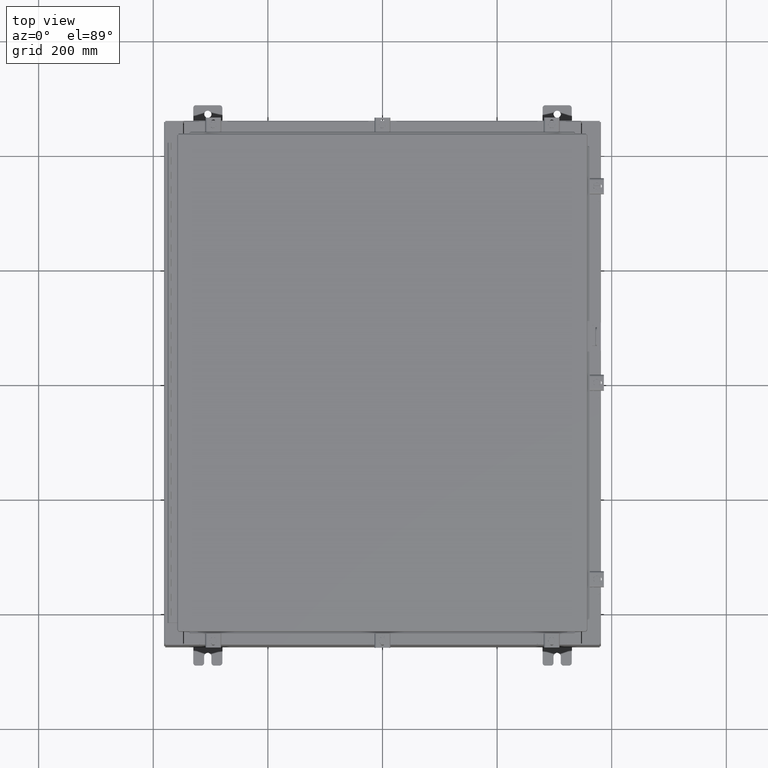
[diagram: clean part render]
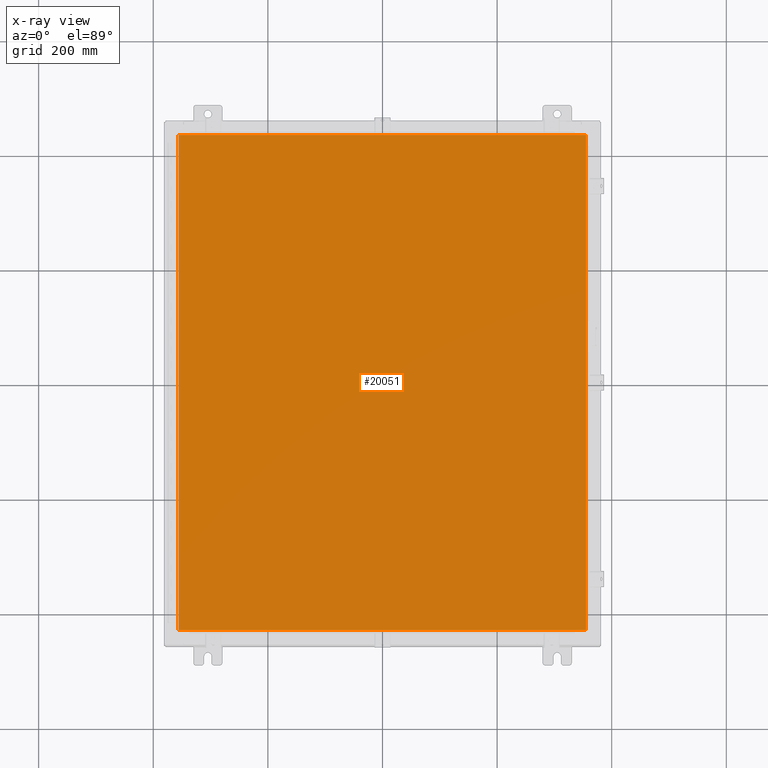
[diagram: x-ray — body ghosted, one internal face saturated and labeled with its STEP entity id]
A machine part, top view, then the same camera in x-ray: the body is ghosted and one INTERNAL B-rep face — a face not visible from any outside direction — is saturated and labeled: STEP entity #20051.
In plain terms, the highlighted planar face has unit normal (0, 0, -1).
Its self-contained STEP definition (entity closure, byte-faithful):
#1720 = VECTOR ( 'NONE', #12648, 39.37007874015748100 ) ;
#2426 = CARTESIAN_POINT ( 'NONE',  ( -13.99030000000000700, -17.00630000000000000, -0.07470000000000000300 ) ) ;
#2892 = CARTESIAN_POINT ( 'NONE',  ( -13.99030000000000700, 17.00630000000000300, -0.07470000000000000300 ) ) ;
#3045 = EDGE_CURVE ( 'NONE', #10862, #36274, #18203, .T. ) ;
#6782 = DIRECTION ( 'NONE',  ( -1.000000000000000000, 0.0000000000000000000, -0.0000000000000000000 ) ) ;
#10529 = LINE ( 'NONE', #35985, #1720 ) ;
#10562 = CARTESIAN_POINT ( 'NONE',  ( 13.99029999999999200, -17.00630000000000000, -0.07470000000000019700 ) ) ;
#10862 = VERTEX_POINT ( 'NONE', #2426 ) ;
#10983 = ORIENTED_EDGE ( 'NONE', *, *, #3045, .F. ) ;
#11260 = AXIS2_PLACEMENT_3D ( 'NONE', #23402, #26756, #6782 ) ;
#12648 = DIRECTION ( 'NONE',  ( 0.0000000000000000000, -1.000000000000000000, 0.0000000000000000000 ) ) ;
#13951 = DIRECTION ( 'NONE',  ( 0.0000000000000000000, 1.000000000000000000, 0.0000000000000000000 ) ) ;
#14300 = LINE ( 'NONE', #10562, #31005 ) ;
#14765 = CARTESIAN_POINT ( 'NONE',  ( 13.99029999999999200, 17.00630000000000300, -0.07470000000000129300 ) ) ;
#18203 = LINE ( 'NONE', #41422, #34913 ) ;
#20051 = ADVANCED_FACE ( 'NONE', ( #34670 ), #20072, .T. ) ;
#20072 = PLANE ( 'NONE',  #11260 ) ;
#21463 = DIRECTION ( 'NONE',  ( -1.000000000000000000, -0.0000000000000000000, -0.0000000000000000000 ) ) ;
#23402 = CARTESIAN_POINT ( 'NONE',  ( 0.0000000000000000000, 0.0000000000000000000, -0.07470000000000000300 ) ) ;
#23942 = LINE ( 'NONE', #14765, #31783 ) ;
#23951 = ORIENTED_EDGE ( 'NONE', *, *, #35169, .F. ) ;
#26756 = DIRECTION ( 'NONE',  ( 0.0000000000000000000, 0.0000000000000000000, -1.000000000000000000 ) ) ;
#27063 = EDGE_LOOP ( 'NONE', ( #31979, #10983, #23951, #35322 ) ) ;
#27628 = EDGE_CURVE ( 'NONE', #36274, #43090, #14300, .T. ) ;
#31005 = VECTOR ( 'NONE', #13951, 39.37007874015748100 ) ;
#31783 = VECTOR ( 'NONE', #21463, 39.37007874015748100 ) ;
#31979 = ORIENTED_EDGE ( 'NONE', *, *, #27628, .F. ) ;
#34670 = FACE_OUTER_BOUND ( 'NONE', #27063, .T. ) ;
#34913 = VECTOR ( 'NONE', #41468, 39.37007874015748100 ) ;
#35169 = EDGE_CURVE ( 'NONE', #35206, #10862, #10529, .T. ) ;
#35206 = VERTEX_POINT ( 'NONE', #2892 ) ;
#35322 = ORIENTED_EDGE ( 'NONE', *, *, #42756, .F. ) ;
#35985 = CARTESIAN_POINT ( 'NONE',  ( -13.99030000000000700, 17.00630000000000000, -0.07470000000000019700 ) ) ;
#36274 = VERTEX_POINT ( 'NONE', #39126 ) ;
#36617 = CARTESIAN_POINT ( 'NONE',  ( 13.99029999999999200, 17.00630000000000300, -0.07470000000000000300 ) ) ;
#39126 = CARTESIAN_POINT ( 'NONE',  ( 13.99029999999999200, -17.00630000000000000, -0.07470000000000000300 ) ) ;
#41422 = CARTESIAN_POINT ( 'NONE',  ( -13.99030000000000700, -17.00630000000000000, -0.07470000000000019700 ) ) ;
#41468 = DIRECTION ( 'NONE',  ( 1.000000000000000000, -0.0000000000000000000, -0.0000000000000000000 ) ) ;
#42756 = EDGE_CURVE ( 'NONE', #43090, #35206, #23942, .T. ) ;
#43090 = VERTEX_POINT ( 'NONE', #36617 ) ;